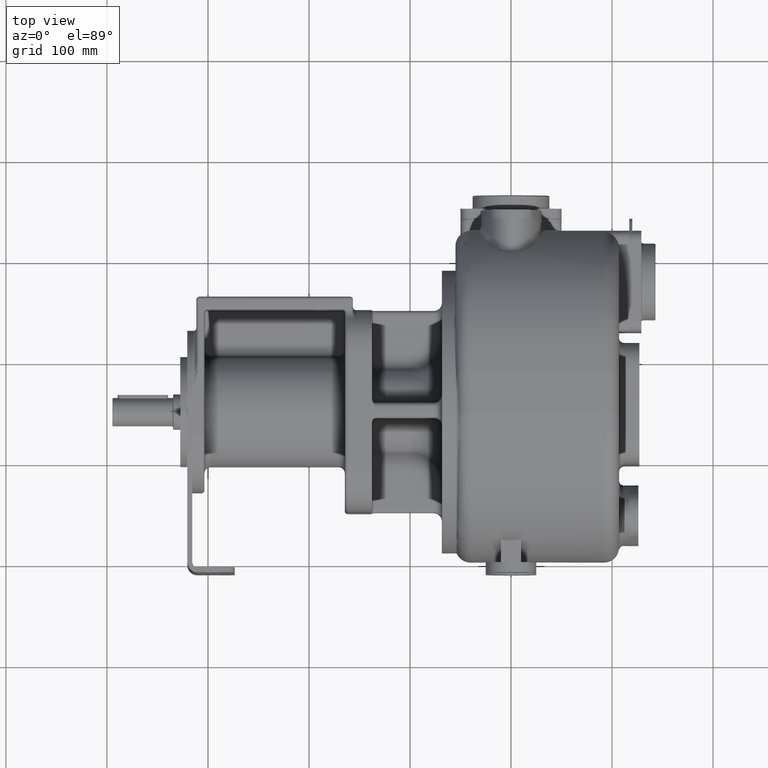
[diagram: clean part render]
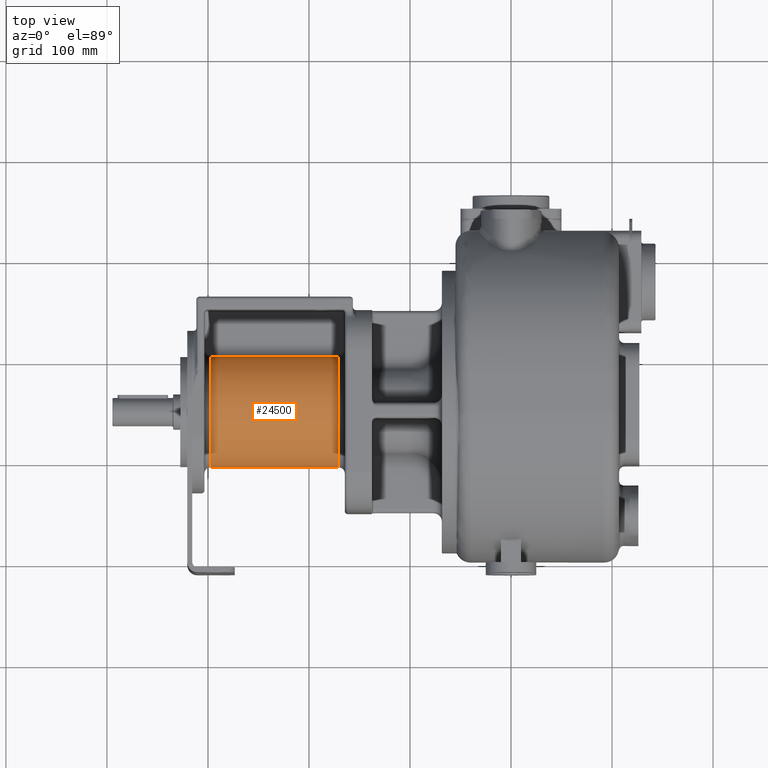
[diagram: same view with one face highlighted and labeled with its STEP entity id]
A machine part, top view. The second image highlights one B-rep face of the part: STEP entity #24500.
In plain terms, the highlighted cylindrical surface (partial cylindrical patch) has radius 55 mm, axis along (-1, 0, 0).
Its self-contained STEP definition (entity closure, byte-faithful):
#8934=CARTESIAN_POINT('',(-1.705E2,2.045979658215E2,-6.637931034777E0));
#8936=CARTESIAN_POINT('',(-1.705E2,1.5E2,0.E0));
#8937=DIRECTION('',(-1.E0,0.E0,0.E0));
#8938=DIRECTION('',(0.E0,9.926902876196E-1,-1.206896551724E-1));
#8939=AXIS2_PLACEMENT_3D('',#8936,#8937,#8938);
#9023=CARTESIAN_POINT('',(-2.975E2,2.045979658216E2,6.637931034794E0));
#9025=CARTESIAN_POINT('',(-2.975E2,1.5E2,0.E0));
#9026=DIRECTION('',(1.E0,0.E0,0.E0));
#9027=DIRECTION('',(0.E0,9.926902876196E-1,1.206896551724E-1));
#9028=AXIS2_PLACEMENT_3D('',#9025,#9026,#9027);
#9094=DIRECTION('',(-1.E0,1.127245278748E-12,-1.370032696215E-13));
#9095=VECTOR('',#9094,1.27E2);
#9096=CARTESIAN_POINT('',(-1.705E2,2.045979658215E2,-6.637931034777E0));
#9097=LINE('',#9096,#9095);
#9098=DIRECTION('',(1.E0,-1.127469071735E-12,-1.370032696215E-13));
#9099=VECTOR('',#9098,1.27E2);
#9100=CARTESIAN_POINT('',(-2.975E2,2.045979658216E2,6.637931034794E0));
#9101=LINE('',#9100,#9099);
#10347=VERTEX_POINT('',#8934);
#10348=CARTESIAN_POINT('',(-2.975E2,2.045979658216E2,-6.637931034794E0));
#10349=VERTEX_POINT('',#10348);
#10362=VERTEX_POINT('',#9023);
#10363=CARTESIAN_POINT('',(-1.705E2,2.045979658215E2,6.637931034777E0));
#10364=VERTEX_POINT('',#10363);
#24488=CARTESIAN_POINT('',(-1.3885E2,1.5E2,0.E0));
#24489=DIRECTION('',(-1.E0,0.E0,0.E0));
#24490=DIRECTION('',(0.E0,-1.E0,0.E0));
#24491=AXIS2_PLACEMENT_3D('',#24488,#24489,#24490);
#24492=CYLINDRICAL_SURFACE('',#24491,5.5E1);
#24494=ORIENTED_EDGE('',*,*,#24493,.T.);
#24495=ORIENTED_EDGE('',*,*,#24258,.F.);
#24496=ORIENTED_EDGE('',*,*,#24480,.T.);
#24497=ORIENTED_EDGE('',*,*,#23910,.F.);
#24498=EDGE_LOOP('',(#24494,#24495,#24496,#24497));
#24499=FACE_OUTER_BOUND('',#24498,.F.);
#24500=ADVANCED_FACE('',(#24499),#24492,.T.);
#8940=CIRCLE('',#8939,5.5E1);
#9029=CIRCLE('',#9028,5.5E1);
#23910=EDGE_CURVE('',#10347,#10364,#8940,.T.);
#24258=EDGE_CURVE('',#10362,#10349,#9029,.T.);
#24480=EDGE_CURVE('',#10362,#10364,#9101,.T.);
#24493=EDGE_CURVE('',#10347,#10349,#9097,.T.);